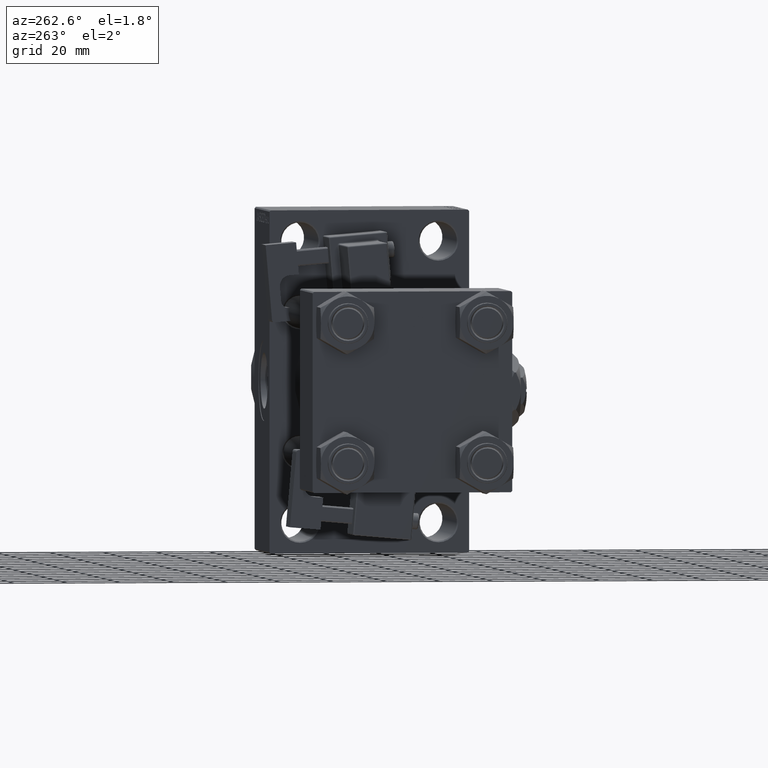
[diagram: clean part render]
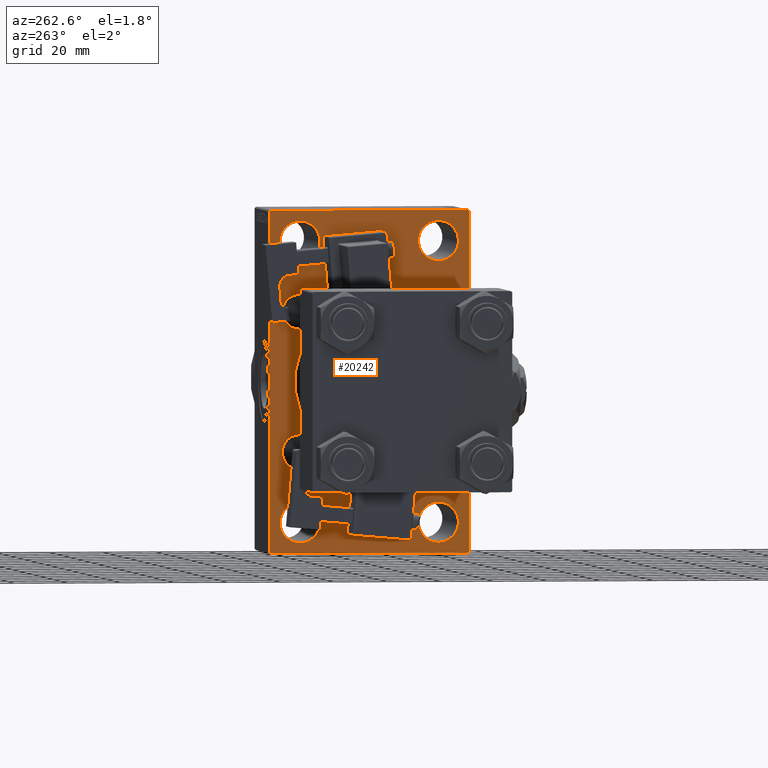
[diagram: same view with one face highlighted and labeled with its STEP entity id]
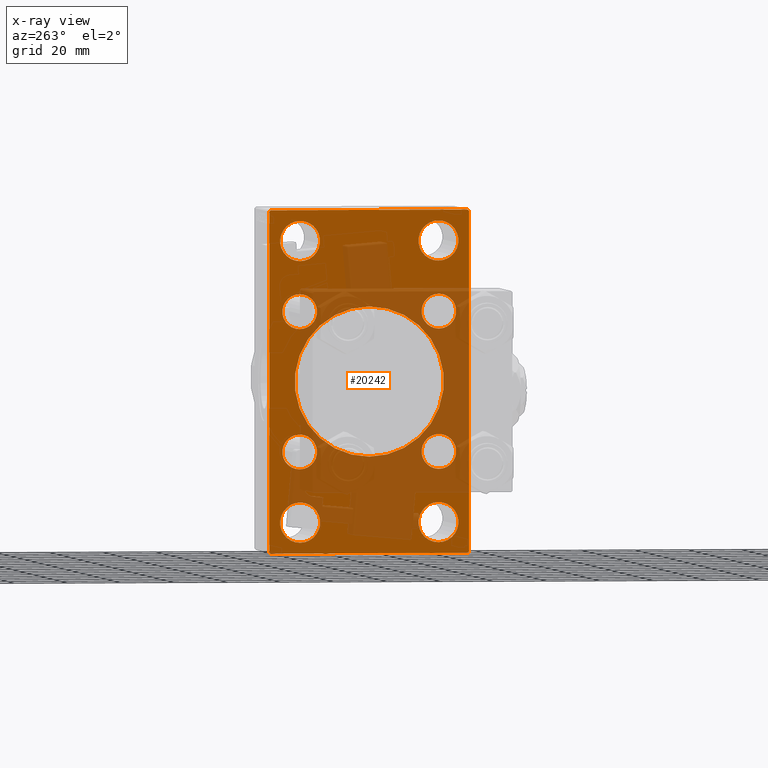
[diagram: x-ray of the same camera — body ghosted, the highlighted face saturated]
A machine part, auxiliary view. The second image highlights one B-rep face of the part: STEP entity #20242.
The next image is the same camera in x-ray: the body ghosted, the highlighted face saturated — about 49% of this face is hidden behind the body in this view.
In plain terms, the highlighted planar face has unit normal (-1, 0, 0).
Its self-contained STEP definition (entity closure, byte-faithful):
#25 = DIRECTION ( 'NONE',  ( 0.000000000000000000, 0.000000000000000000, -1.000000000000000000 ) ) ;
#528 = CARTESIAN_POINT ( 'NONE',  ( 125.0000000000000000, -26.14999999999999147, -26.15000000000000924 ) ) ;
#831 = FACE_BOUND ( 'NONE', #28822, .T. ) ;
#1018 = EDGE_CURVE ( 'NONE', #21392, #42918, #34332, .T. ) ;
#1082 = FACE_BOUND ( 'NONE', #19512, .T. ) ;
#1297 = VERTEX_POINT ( 'NONE', #34789 ) ;
#1487 = CARTESIAN_POINT ( 'NONE',  ( 125.0000000000000000, -26.14999999999999147, -32.65000000000001990 ) ) ;
#1526 = DIRECTION ( 'NONE',  ( 0.000000000000000000, 0.000000000000000000, -1.000000000000000000 ) ) ;
#1710 = DIRECTION ( 'NONE',  ( 0.000000000000000000, 0.7071067811865474617, -0.7071067811865474617 ) ) ;
#2658 = DIRECTION ( 'NONE',  ( 1.000000000000000000, -0.000000000000000000, 0.000000000000000000 ) ) ;
#2847 = ORIENTED_EDGE ( 'NONE', *, *, #9623, .T. ) ;
#2875 = ORIENTED_EDGE ( 'NONE', *, *, #12840, .T. ) ;
#2917 = VERTEX_POINT ( 'NONE', #12791 ) ;
#3175 = EDGE_CURVE ( 'NONE', #42918, #21392, #5589, .T. ) ;
#3198 = ORIENTED_EDGE ( 'NONE', *, *, #1018, .T. ) ;
#3248 = CARTESIAN_POINT ( 'NONE',  ( 125.0000000000000000, -26.14999999999999147, 32.65000000000001990 ) ) ;
#3574 = CARTESIAN_POINT ( 'NONE',  ( 125.0000000000000000, -26.14999999999999147, -19.65000000000000213 ) ) ;
#3688 = DIRECTION ( 'NONE',  ( 1.000000000000000000, -0.000000000000000000, 0.000000000000000000 ) ) ;
#3963 = VECTOR ( 'NONE', #16305, 1000.000000000000000 ) ;
#4142 = ORIENTED_EDGE ( 'NONE', *, *, #10031, .T. ) ;
#4682 = FACE_BOUND ( 'NONE', #38218, .T. ) ;
#4752 = EDGE_CURVE ( 'NONE', #36197, #29111, #34834, .T. ) ;
#5383 = ORIENTED_EDGE ( 'NONE', *, *, #48652, .T. ) ;
#5589 = CIRCLE ( 'NONE', #49921, 6.500000000000008882 ) ;
#5780 = DIRECTION ( 'NONE',  ( 0.000000000000000000, 0.000000000000000000, -1.000000000000000000 ) ) ;
#5988 = DIRECTION ( 'NONE',  ( 1.000000000000000000, -0.000000000000000000, 0.000000000000000000 ) ) ;
#6448 = VERTEX_POINT ( 'NONE', #35170 ) ;
#6474 = ORIENTED_EDGE ( 'NONE', *, *, #6641, .T. ) ;
#6477 = ORIENTED_EDGE ( 'NONE', *, *, #3175, .T. ) ;
#6483 = CARTESIAN_POINT ( 'NONE',  ( 125.0000000000000000, -26.14999999999999147, 26.15000000000000924 ) ) ;
#6528 = VERTEX_POINT ( 'NONE', #24803 ) ;
#6641 = EDGE_CURVE ( 'NONE', #18542, #12325, #22936, .T. ) ;
#6739 = CIRCLE ( 'NONE', #14931, 6.500000000000008882 ) ;
#7019 = EDGE_CURVE ( 'NONE', #23165, #48992, #27094, .T. ) ;
#7207 = VERTEX_POINT ( 'NONE', #7763 ) ;
#7447 = CARTESIAN_POINT ( 'NONE',  ( 125.0000000000000000, -2.602085213965210642E-15, 28.00000000000000000 ) ) ;
#7701 = EDGE_CURVE ( 'NONE', #19695, #6448, #21812, .T. ) ;
#7707 = EDGE_CURVE ( 'NONE', #36197, #6448, #13339, .T. ) ;
#7763 = CARTESIAN_POINT ( 'NONE',  ( 125.0000000000000000, 26.14999999999999858, -19.64999999999999503 ) ) ;
#7791 = AXIS2_PLACEMENT_3D ( 'NONE', #43044, #3688, #11399 ) ;
#8189 = AXIS2_PLACEMENT_3D ( 'NONE', #29652, #10601, #14448 ) ;
#8206 = DIRECTION ( 'NONE',  ( 0.000000000000000000, -5.421010862427522170E-17, -1.000000000000000000 ) ) ;
#8395 = CARTESIAN_POINT ( 'NONE',  ( 125.0000000000000000, 50.49999999999998579, 50.49999999999998579 ) ) ;
#8445 = AXIS2_PLACEMENT_3D ( 'NONE', #40764, #29681, #5780 ) ;
#8929 = CARTESIAN_POINT ( 'NONE',  ( 125.0000000000000000, 37.49999999999999289, -63.50000000000001421 ) ) ;
#9147 = CIRCLE ( 'NONE', #24750, 28.00000000000000000 ) ;
#9319 = ORIENTED_EDGE ( 'NONE', *, *, #11962, .T. ) ;
#9484 = CARTESIAN_POINT ( 'NONE',  ( 125.0000000000000000, -50.49999999999949551, -50.50000000000089528 ) ) ;
#9623 = EDGE_CURVE ( 'NONE', #20594, #32283, #23981, .T. ) ;
#9721 = EDGE_LOOP ( 'NONE', ( #5383, #45974 ) ) ;
#9806 = DIRECTION ( 'NONE',  ( 1.000000000000000000, -0.000000000000000000, 0.000000000000000000 ) ) ;
#9832 = ORIENTED_EDGE ( 'NONE', *, *, #47431, .T. ) ;
#10031 = EDGE_CURVE ( 'NONE', #24535, #10893, #47738, .T. ) ;
#10080 = AXIS2_PLACEMENT_3D ( 'NONE', #13311, #29267, #36985 ) ;
#10316 = CIRCLE ( 'NONE', #19354, 7.500000000000034639 ) ;
#10460 = EDGE_CURVE ( 'NONE', #2917, #19184, #9147, .T. ) ;
#10478 = LINE ( 'NONE', #46223, #43224 ) ;
#10516 = CARTESIAN_POINT ( 'NONE',  ( 125.0000000000000000, -37.49999999999999289, 63.50000000000000000 ) ) ;
#10601 = DIRECTION ( 'NONE',  ( 1.000000000000000000, -0.000000000000000000, 0.000000000000000000 ) ) ;
#10609 = DIRECTION ( 'NONE',  ( 1.000000000000000000, -0.000000000000000000, 0.000000000000000000 ) ) ;
#10841 = DIRECTION ( 'NONE',  ( 0.000000000000000000, 0.000000000000000000, 1.000000000000000000 ) ) ;
#10893 = VERTEX_POINT ( 'NONE', #1487 ) ;
#11182 = DIRECTION ( 'NONE',  ( 1.000000000000000000, -0.000000000000000000, 0.000000000000000000 ) ) ;
#11259 = VECTOR ( 'NONE', #8206, 1000.000000000000000 ) ;
#11399 = DIRECTION ( 'NONE',  ( 0.000000000000000000, 0.000000000000000000, 1.000000000000000000 ) ) ;
#11962 = EDGE_CURVE ( 'NONE', #21151, #36388, #6739, .T. ) ;
#12044 = CARTESIAN_POINT ( 'NONE',  ( 125.0000000000000000, 26.14999999999999858, 32.65000000000001990 ) ) ;
#12091 = DIRECTION ( 'NONE',  ( 1.000000000000000000, -0.000000000000000000, 0.000000000000000000 ) ) ;
#12199 = EDGE_CURVE ( 'NONE', #1297, #7207, #42076, .T. ) ;
#12325 = VERTEX_POINT ( 'NONE', #40656 ) ;
#12368 = DIRECTION ( 'NONE',  ( 0.000000000000000000, 0.000000000000000000, 1.000000000000000000 ) ) ;
#12791 = CARTESIAN_POINT ( 'NONE',  ( 125.0000000000000000, 8.269258236473784371E-16, -28.00000000000000000 ) ) ;
#12840 = EDGE_CURVE ( 'NONE', #19184, #2917, #21524, .T. ) ;
#13066 = CIRCLE ( 'NONE', #31981, 7.500000000000034639 ) ;
#13311 = CARTESIAN_POINT ( 'NONE',  ( 125.0000000000000000, -26.14999999999999147, -26.15000000000000924 ) ) ;
#13339 = LINE ( 'NONE', #17706, #23794 ) ;
#13491 = VERTEX_POINT ( 'NONE', #48563 ) ;
#14185 = CIRCLE ( 'NONE', #10080, 6.500000000000008882 ) ;
#14215 = DIRECTION ( 'NONE',  ( 1.000000000000000000, -0.000000000000000000, 0.000000000000000000 ) ) ;
#14448 = DIRECTION ( 'NONE',  ( 0.000000000000000000, 0.000000000000000000, 1.000000000000000000 ) ) ;
#14518 = EDGE_CURVE ( 'NONE', #10893, #24535, #14185, .T. ) ;
#14847 = DIRECTION ( 'NONE',  ( 0.000000000000000000, -1.000000000000000000, -1.850371707708594563E-16 ) ) ;
#14931 = AXIS2_PLACEMENT_3D ( 'NONE', #16044, #28634, #21160 ) ;
#15110 = CIRCLE ( 'NONE', #43876, 7.500000000000034639 ) ;
#15544 = DIRECTION ( 'NONE',  ( 1.000000000000000000, -0.000000000000000000, 0.000000000000000000 ) ) ;
#15666 = EDGE_CURVE ( 'NONE', #36388, #21151, #40457, .T. ) ;
#15673 = DIRECTION ( 'NONE',  ( 1.000000000000000000, -0.000000000000000000, 0.000000000000000000 ) ) ;
#16044 = CARTESIAN_POINT ( 'NONE',  ( 125.0000000000000000, 26.14999999999999858, 26.15000000000000213 ) ) ;
#16259 = FACE_BOUND ( 'NONE', #45561, .T. ) ;
#16305 = DIRECTION ( 'NONE',  ( -0.000000000000000000, 0.7071067811865524577, 0.7071067811865426878 ) ) ;
#16461 = CARTESIAN_POINT ( 'NONE',  ( 125.0000000000000000, -25.99999999999999645, 60.00000000000003553 ) ) ;
#16519 = PLANE ( 'NONE',  #19228 ) ;
#16531 = DIRECTION ( 'NONE',  ( -0.000000000000000000, -0.7071067811865376918, -0.7071067811865573427 ) ) ;
#16623 = EDGE_CURVE ( 'NONE', #6528, #26334, #43643, .T. ) ;
#17023 = DIRECTION ( 'NONE',  ( -0.000000000000000000, 0.000000000000000000, 1.000000000000000000 ) ) ;
#17038 = ORIENTED_EDGE ( 'NONE', *, *, #14518, .T. ) ;
#17239 = VERTEX_POINT ( 'NONE', #48902 ) ;
#17445 = CARTESIAN_POINT ( 'NONE',  ( 125.0000000000000000, 26.00000000000000000, -44.99999999999995737 ) ) ;
#17500 = DIRECTION ( 'NONE',  ( 0.000000000000000000, 0.000000000000000000, 1.000000000000000000 ) ) ;
#17706 = CARTESIAN_POINT ( 'NONE',  ( 125.0000000000000000, -37.49999999999999289, 63.99999999999997158 ) ) ;
#18299 = VECTOR ( 'NONE', #1710, 1000.000000000000114 ) ;
#18395 = DIRECTION ( 'NONE',  ( 0.000000000000000000, 0.000000000000000000, 1.000000000000000000 ) ) ;
#18542 = VERTEX_POINT ( 'NONE', #32124 ) ;
#18659 = CARTESIAN_POINT ( 'NONE',  ( 125.0000000000000000, -26.14999999999999147, 26.15000000000000924 ) ) ;
#18907 = AXIS2_PLACEMENT_3D ( 'NONE', #45840, #10609, #26298 ) ;
#19184 = VERTEX_POINT ( 'NONE', #7447 ) ;
#19228 = AXIS2_PLACEMENT_3D ( 'NONE', #24478, #31692, #17023 ) ;
#19354 = AXIS2_PLACEMENT_3D ( 'NONE', #46662, #15544, #27630 ) ;
#19512 = EDGE_LOOP ( 'NONE', ( #2875, #45122 ) ) ;
#19535 = AXIS2_PLACEMENT_3D ( 'NONE', #50281, #11182, #18395 ) ;
#19622 = CARTESIAN_POINT ( 'NONE',  ( 125.0000000000000000, 50.50000000000053291, -50.49999999999912603 ) ) ;
#19695 = VERTEX_POINT ( 'NONE', #48786 ) ;
#20242 = ADVANCED_FACE ( 'NONE', ( #39920, #36320, #16259, #40683, #4682, #48146, #831, #44291, #1082, #31948 ), #16519, .T. ) ;
#20594 = VERTEX_POINT ( 'NONE', #8929 ) ;
#20711 = AXIS2_PLACEMENT_3D ( 'NONE', #42740, #35527, #12368 ) ;
#21064 = ORIENTED_EDGE ( 'NONE', *, *, #39123, .T. ) ;
#21149 = EDGE_CURVE ( 'NONE', #7207, #1297, #34871, .T. ) ;
#21151 = VERTEX_POINT ( 'NONE', #27845 ) ;
#21160 = DIRECTION ( 'NONE',  ( 0.000000000000000000, 0.000000000000000000, 1.000000000000000000 ) ) ;
#21187 = CARTESIAN_POINT ( 'NONE',  ( 125.0000000000000000, 37.50000000000000000, 63.49999999999998579 ) ) ;
#21392 = VERTEX_POINT ( 'NONE', #3248 ) ;
#21524 = CIRCLE ( 'NONE', #8445, 28.00000000000000000 ) ;
#21812 = LINE ( 'NONE', #9484, #39406 ) ;
#22605 = CARTESIAN_POINT ( 'NONE',  ( 125.0000000000000000, 26.14999999999999858, 26.15000000000000213 ) ) ;
#22645 = EDGE_CURVE ( 'NONE', #6528, #29111, #46148, .T. ) ;
#22893 = CIRCLE ( 'NONE', #18907, 7.500000000000034639 ) ;
#22936 = CIRCLE ( 'NONE', #46773, 7.500000000000034639 ) ;
#23165 = VERTEX_POINT ( 'NONE', #31357 ) ;
#23383 = ORIENTED_EDGE ( 'NONE', *, *, #35537, .T. ) ;
#23758 = CARTESIAN_POINT ( 'NONE',  ( 125.0000000000000000, -50.49999999999972999, 50.50000000000042633 ) ) ;
#23794 = VECTOR ( 'NONE', #1526, 1000.000000000000000 ) ;
#23981 = LINE ( 'NONE', #19622, #41139 ) ;
#24318 = ORIENTED_EDGE ( 'NONE', *, *, #7019, .T. ) ;
#24478 = CARTESIAN_POINT ( 'NONE',  ( 125.0000000000000000, 0.000000000000000000, 0.000000000000000000 ) ) ;
#24535 = VERTEX_POINT ( 'NONE', #3574 ) ;
#24578 = EDGE_LOOP ( 'NONE', ( #21064, #36631, #49758, #48500, #47489, #28240, #29971, #2847 ) ) ;
#24750 = AXIS2_PLACEMENT_3D ( 'NONE', #39118, #50429, #25 ) ;
#24803 = CARTESIAN_POINT ( 'NONE',  ( 125.0000000000000000, 37.00000000000000000, 63.99999999999998579 ) ) ;
#25052 = CIRCLE ( 'NONE', #7791, 7.500000000000034639 ) ;
#25215 = DIRECTION ( 'NONE',  ( 1.000000000000000000, -0.000000000000000000, 0.000000000000000000 ) ) ;
#25920 = DIRECTION ( 'NONE',  ( 0.000000000000000000, -0.7071067811865573427, 0.7071067811865378028 ) ) ;
#26298 = DIRECTION ( 'NONE',  ( 0.000000000000000000, 0.000000000000000000, 1.000000000000000000 ) ) ;
#26334 = VERTEX_POINT ( 'NONE', #21187 ) ;
#26728 = DIRECTION ( 'NONE',  ( 0.000000000000000000, 0.000000000000000000, 1.000000000000000000 ) ) ;
#26934 = VERTEX_POINT ( 'NONE', #16461 ) ;
#27030 = EDGE_LOOP ( 'NONE', ( #46785, #9319 ) ) ;
#27094 = CIRCLE ( 'NONE', #8189, 7.500000000000034639 ) ;
#27303 = EDGE_LOOP ( 'NONE', ( #24318, #27550 ) ) ;
#27507 = CARTESIAN_POINT ( 'NONE',  ( 125.0000000000000000, -37.00000000000001421, 63.99999999999997158 ) ) ;
#27550 = ORIENTED_EDGE ( 'NONE', *, *, #42526, .T. ) ;
#27630 = DIRECTION ( 'NONE',  ( 0.000000000000000000, 0.000000000000000000, 1.000000000000000000 ) ) ;
#27787 = DIRECTION ( 'NONE',  ( 0.000000000000000000, 0.000000000000000000, 1.000000000000000000 ) ) ;
#27845 = CARTESIAN_POINT ( 'NONE',  ( 125.0000000000000000, 26.14999999999999858, 19.64999999999999147 ) ) ;
#27977 = CARTESIAN_POINT ( 'NONE',  ( 125.0000000000000000, 26.00000000000000000, 44.99999999999995737 ) ) ;
#27986 = EDGE_CURVE ( 'NONE', #17239, #46909, #15110, .T. ) ;
#28240 = ORIENTED_EDGE ( 'NONE', *, *, #16623, .T. ) ;
#28634 = DIRECTION ( 'NONE',  ( 1.000000000000000000, -0.000000000000000000, 0.000000000000000000 ) ) ;
#28822 = EDGE_LOOP ( 'NONE', ( #37292, #37094 ) ) ;
#28996 = EDGE_LOOP ( 'NONE', ( #4142, #17038 ) ) ;
#29111 = VERTEX_POINT ( 'NONE', #27507 ) ;
#29267 = DIRECTION ( 'NONE',  ( 1.000000000000000000, -0.000000000000000000, 0.000000000000000000 ) ) ;
#29652 = CARTESIAN_POINT ( 'NONE',  ( 125.0000000000000000, 26.00000000000000000, 52.49999999999999289 ) ) ;
#29681 = DIRECTION ( 'NONE',  ( 1.000000000000000000, 0.000000000000000000, 0.000000000000000000 ) ) ;
#29971 = ORIENTED_EDGE ( 'NONE', *, *, #41053, .T. ) ;
#30669 = DIRECTION ( 'NONE',  ( 0.000000000000000000, 0.000000000000000000, 1.000000000000000000 ) ) ;
#30927 = DIRECTION ( 'NONE',  ( 0.000000000000000000, 0.000000000000000000, 1.000000000000000000 ) ) ;
#31357 = CARTESIAN_POINT ( 'NONE',  ( 125.0000000000000000, 26.00000000000000000, 60.00000000000002842 ) ) ;
#31692 = DIRECTION ( 'NONE',  ( -1.000000000000000000, 0.000000000000000000, -0.000000000000000000 ) ) ;
#31823 = EDGE_LOOP ( 'NONE', ( #6474, #23383 ) ) ;
#31948 = FACE_OUTER_BOUND ( 'NONE', #24578, .T. ) ;
#31981 = AXIS2_PLACEMENT_3D ( 'NONE', #32724, #9806, #48918 ) ;
#32124 = CARTESIAN_POINT ( 'NONE',  ( 125.0000000000000000, -25.99999999999999645, -44.99999999999995737 ) ) ;
#32283 = VERTEX_POINT ( 'NONE', #49908 ) ;
#32427 = AXIS2_PLACEMENT_3D ( 'NONE', #49468, #2658, #30669 ) ;
#32626 = VECTOR ( 'NONE', #46655, 1000.000000000000000 ) ;
#32724 = CARTESIAN_POINT ( 'NONE',  ( 125.0000000000000000, -25.99999999999999645, 52.50000000000000000 ) ) ;
#33541 = AXIS2_PLACEMENT_3D ( 'NONE', #6483, #5988, #10841 ) ;
#34318 = CARTESIAN_POINT ( 'NONE',  ( 125.0000000000000000, 37.50000000000000000, 63.99999999999998579 ) ) ;
#34332 = CIRCLE ( 'NONE', #33541, 6.500000000000008882 ) ;
#34354 = DIRECTION ( 'NONE',  ( 1.000000000000000000, -0.000000000000000000, 0.000000000000000000 ) ) ;
#34789 = CARTESIAN_POINT ( 'NONE',  ( 125.0000000000000000, 26.14999999999999858, -32.65000000000001279 ) ) ;
#34834 = LINE ( 'NONE', #23758, #3963 ) ;
#34871 = CIRCLE ( 'NONE', #32427, 6.500000000000008882 ) ;
#35170 = CARTESIAN_POINT ( 'NONE',  ( 125.0000000000000000, -37.49999999999999289, -63.50000000000002842 ) ) ;
#35476 = LINE ( 'NONE', #43447, #11259 ) ;
#35527 = DIRECTION ( 'NONE',  ( 1.000000000000000000, -0.000000000000000000, 0.000000000000000000 ) ) ;
#35537 = EDGE_CURVE ( 'NONE', #12325, #18542, #25052, .T. ) ;
#36197 = VERTEX_POINT ( 'NONE', #10516 ) ;
#36320 = FACE_BOUND ( 'NONE', #31823, .T. ) ;
#36388 = VERTEX_POINT ( 'NONE', #12044 ) ;
#36631 = ORIENTED_EDGE ( 'NONE', *, *, #7701, .T. ) ;
#36799 = CARTESIAN_POINT ( 'NONE',  ( 125.0000000000000000, 26.00000000000000000, -52.49999999999999289 ) ) ;
#36985 = DIRECTION ( 'NONE',  ( 0.000000000000000000, 0.000000000000000000, 1.000000000000000000 ) ) ;
#37094 = ORIENTED_EDGE ( 'NONE', *, *, #12199, .T. ) ;
#37292 = ORIENTED_EDGE ( 'NONE', *, *, #21149, .T. ) ;
#37790 = EDGE_CURVE ( 'NONE', #13491, #26934, #10316, .T. ) ;
#38218 = EDGE_LOOP ( 'NONE', ( #3198, #6477 ) ) ;
#39118 = CARTESIAN_POINT ( 'NONE',  ( 125.0000000000000000, -2.602085213965210642E-15, 0.000000000000000000 ) ) ;
#39123 = EDGE_CURVE ( 'NONE', #32283, #19695, #10478, .T. ) ;
#39406 = VECTOR ( 'NONE', #25920, 1000.000000000000000 ) ;
#39920 = FACE_BOUND ( 'NONE', #9721, .T. ) ;
#40457 = CIRCLE ( 'NONE', #43739, 6.500000000000008882 ) ;
#40656 = CARTESIAN_POINT ( 'NONE',  ( 125.0000000000000000, -25.99999999999999645, -60.00000000000002842 ) ) ;
#40683 = FACE_BOUND ( 'NONE', #27303, .T. ) ;
#40764 = CARTESIAN_POINT ( 'NONE',  ( 125.0000000000000000, -2.602085213965210642E-15, 0.000000000000000000 ) ) ;
#41053 = EDGE_CURVE ( 'NONE', #26334, #20594, #35476, .T. ) ;
#41139 = VECTOR ( 'NONE', #16531, 1000.000000000000114 ) ;
#41168 = AXIS2_PLACEMENT_3D ( 'NONE', #528, #12091, #27787 ) ;
#41750 = CIRCLE ( 'NONE', #19535, 7.500000000000034639 ) ;
#42076 = CIRCLE ( 'NONE', #20711, 6.500000000000008882 ) ;
#42526 = EDGE_CURVE ( 'NONE', #48992, #23165, #41750, .T. ) ;
#42740 = CARTESIAN_POINT ( 'NONE',  ( 125.0000000000000000, 26.14999999999999858, -26.15000000000000213 ) ) ;
#42918 = VERTEX_POINT ( 'NONE', #50477 ) ;
#43044 = CARTESIAN_POINT ( 'NONE',  ( 125.0000000000000000, -25.99999999999999645, -52.49999999999999289 ) ) ;
#43224 = VECTOR ( 'NONE', #14847, 1000.000000000000000 ) ;
#43447 = CARTESIAN_POINT ( 'NONE',  ( 125.0000000000000000, 37.50000000000000000, 63.99999999999998579 ) ) ;
#43643 = LINE ( 'NONE', #8395, #18299 ) ;
#43739 = AXIS2_PLACEMENT_3D ( 'NONE', #22605, #15673, #26728 ) ;
#43876 = AXIS2_PLACEMENT_3D ( 'NONE', #36799, #25215, #17500 ) ;
#44291 = FACE_BOUND ( 'NONE', #28996, .T. ) ;
#45122 = ORIENTED_EDGE ( 'NONE', *, *, #10460, .T. ) ;
#45561 = EDGE_LOOP ( 'NONE', ( #9832, #47659 ) ) ;
#45840 = CARTESIAN_POINT ( 'NONE',  ( 125.0000000000000000, 26.00000000000000000, -52.49999999999999289 ) ) ;
#45974 = ORIENTED_EDGE ( 'NONE', *, *, #37790, .T. ) ;
#46148 = LINE ( 'NONE', #34318, #32626 ) ;
#46223 = CARTESIAN_POINT ( 'NONE',  ( 125.0000000000000000, 37.49999999999999289, -64.00000000000000000 ) ) ;
#46655 = DIRECTION ( 'NONE',  ( 0.000000000000000000, -1.000000000000000000, -1.850371707708594563E-16 ) ) ;
#46662 = CARTESIAN_POINT ( 'NONE',  ( 125.0000000000000000, -25.99999999999999645, 52.50000000000000000 ) ) ;
#46773 = AXIS2_PLACEMENT_3D ( 'NONE', #49465, #14215, #30927 ) ;
#46785 = ORIENTED_EDGE ( 'NONE', *, *, #15666, .T. ) ;
#46909 = VERTEX_POINT ( 'NONE', #17445 ) ;
#47431 = EDGE_CURVE ( 'NONE', #46909, #17239, #22893, .T. ) ;
#47489 = ORIENTED_EDGE ( 'NONE', *, *, #22645, .F. ) ;
#47659 = ORIENTED_EDGE ( 'NONE', *, *, #27986, .T. ) ;
#47738 = CIRCLE ( 'NONE', #41168, 6.500000000000008882 ) ;
#48146 = FACE_BOUND ( 'NONE', #27030, .T. ) ;
#48500 = ORIENTED_EDGE ( 'NONE', *, *, #4752, .T. ) ;
#48563 = CARTESIAN_POINT ( 'NONE',  ( 125.0000000000000000, -25.99999999999999645, 44.99999999999996447 ) ) ;
#48652 = EDGE_CURVE ( 'NONE', #26934, #13491, #13066, .T. ) ;
#48786 = CARTESIAN_POINT ( 'NONE',  ( 125.0000000000000000, -36.99999999999999289, -64.00000000000001421 ) ) ;
#48902 = CARTESIAN_POINT ( 'NONE',  ( 125.0000000000000000, 26.00000000000000000, -60.00000000000002842 ) ) ;
#48918 = DIRECTION ( 'NONE',  ( 0.000000000000000000, 0.000000000000000000, 1.000000000000000000 ) ) ;
#48992 = VERTEX_POINT ( 'NONE', #27977 ) ;
#49465 = CARTESIAN_POINT ( 'NONE',  ( 125.0000000000000000, -25.99999999999999645, -52.49999999999999289 ) ) ;
#49468 = CARTESIAN_POINT ( 'NONE',  ( 125.0000000000000000, 26.14999999999999858, -26.15000000000000213 ) ) ;
#49758 = ORIENTED_EDGE ( 'NONE', *, *, #7707, .F. ) ;
#49908 = CARTESIAN_POINT ( 'NONE',  ( 125.0000000000000000, 37.00000000000002132, -64.00000000000000000 ) ) ;
#49921 = AXIS2_PLACEMENT_3D ( 'NONE', #18659, #34354, #50041 ) ;
#50041 = DIRECTION ( 'NONE',  ( 0.000000000000000000, 0.000000000000000000, 1.000000000000000000 ) ) ;
#50281 = CARTESIAN_POINT ( 'NONE',  ( 125.0000000000000000, 26.00000000000000000, 52.49999999999999289 ) ) ;
#50429 = DIRECTION ( 'NONE',  ( 1.000000000000000000, 0.000000000000000000, 0.000000000000000000 ) ) ;
#50477 = CARTESIAN_POINT ( 'NONE',  ( 125.0000000000000000, -26.14999999999999147, 19.65000000000000213 ) ) ;